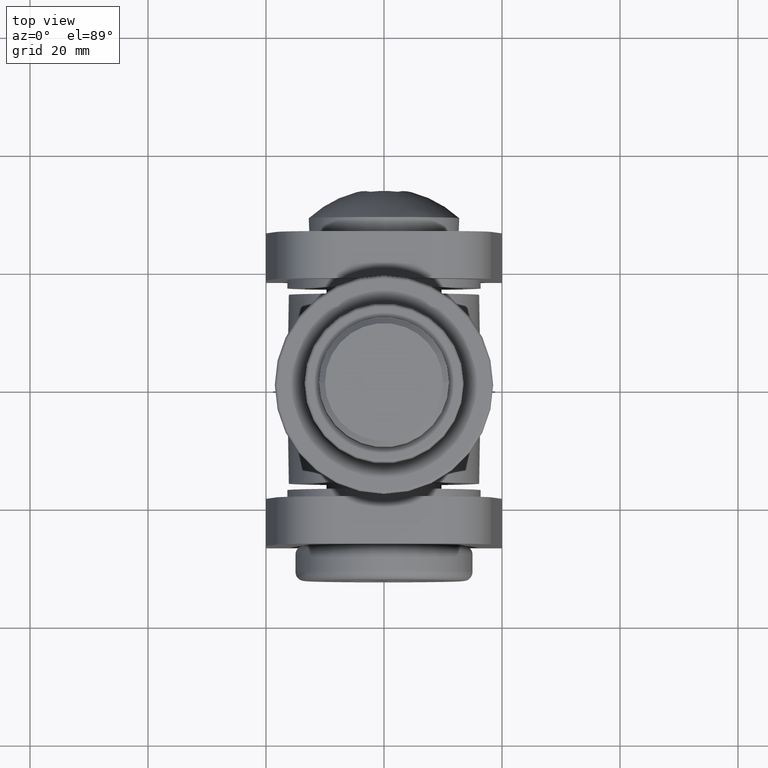
[diagram: clean part render]
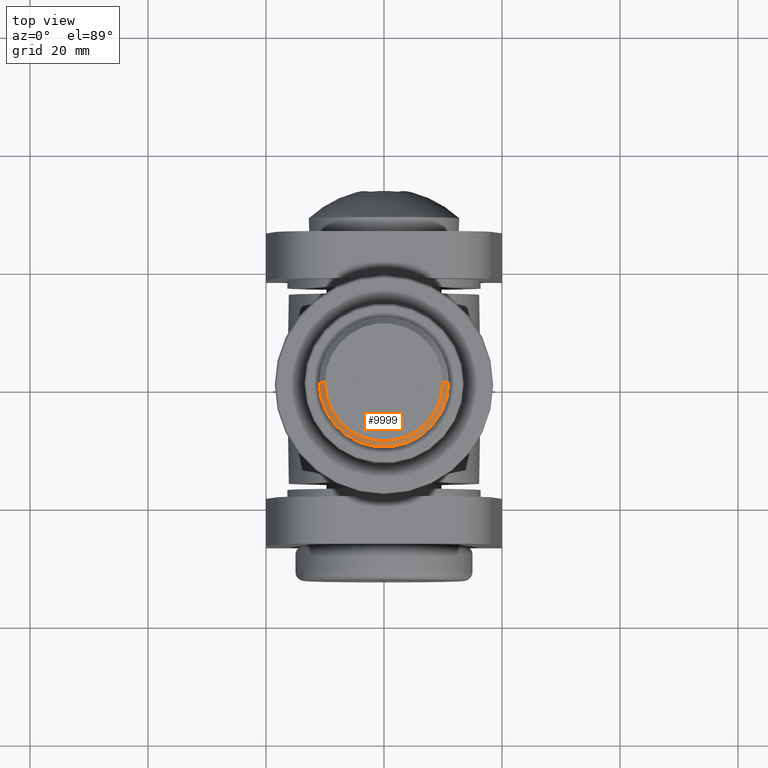
[diagram: same view with one face highlighted and labeled with its STEP entity id]
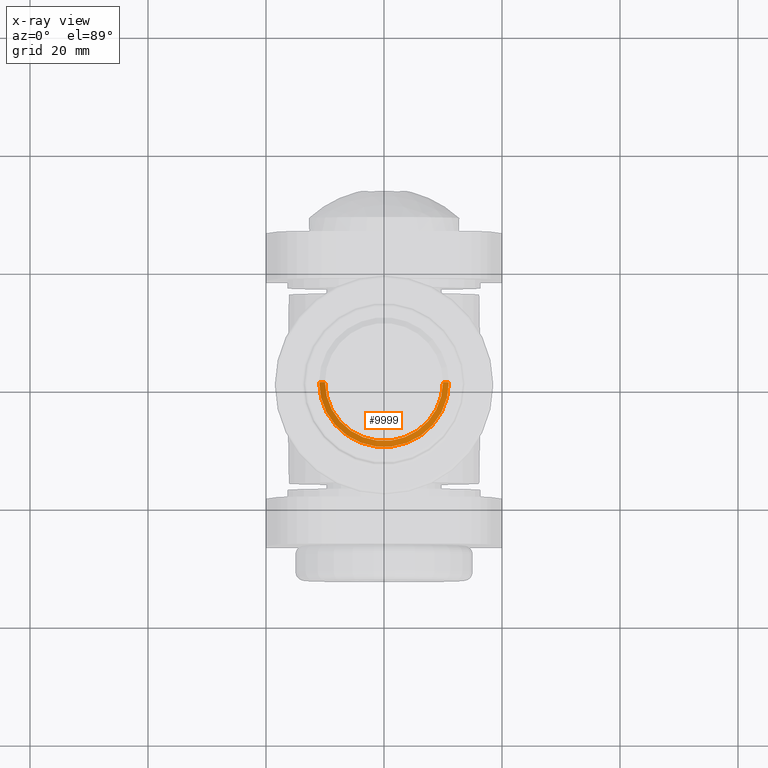
[diagram: x-ray of the same camera — body ghosted, the highlighted face saturated]
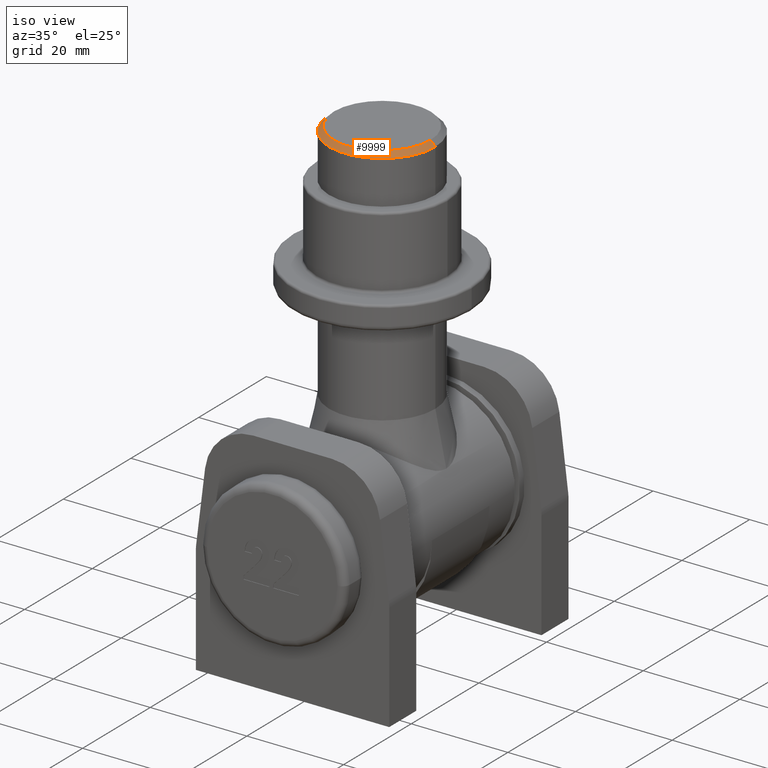
[diagram: same view with one face highlighted and labeled with its STEP entity id]
A machine part, top view. The second image highlights one B-rep face of the part: STEP entity #9999.
The next image is the same camera in x-ray: the body ghosted, the highlighted face saturated — about 0% of this face is hidden behind the body in this view.
A second angle (iso view) of the same face is appended — the face is thin or edge-on in the first view.
In plain terms, the highlighted conical surface has half-angle 45 deg.
Its self-contained STEP definition (entity closure, byte-faithful):
#82 = EDGE_CURVE ( 'NONE', #9168, #4459, #9275, .T. ) ;
#108 = CARTESIAN_POINT ( 'NONE',  ( 0.0000000000000000000, 0.0000000000000000000, 69.00000000000001400 ) ) ;
#285 = EDGE_CURVE ( 'NONE', #1518, #10816, #14942, .T. ) ;
#546 = DIRECTION ( 'NONE',  ( 0.0000000000000000000, 0.0000000000000000000, 1.000000000000000000 ) ) ;
#1126 = LINE ( 'NONE', #8295, #11838 ) ;
#1146 = CARTESIAN_POINT ( 'NONE',  ( 11.00000000000000000, 0.0000000000000000000, 69.00000000000001400 ) ) ;
#1518 = VERTEX_POINT ( 'NONE', #4628 ) ;
#1937 = CARTESIAN_POINT ( 'NONE',  ( -9.999999999999994700, 0.0000000000000000000, 70.00000000000000000 ) ) ;
#2930 = DIRECTION ( 'NONE',  ( 1.000000000000000000, 0.0000000000000000000, 0.0000000000000000000 ) ) ;
#3541 = CARTESIAN_POINT ( 'NONE',  ( 9.999999999999994700, 1.285879139104720400E-015, 70.00000000000000000 ) ) ;
#3727 = DIRECTION ( 'NONE',  ( 0.0000000000000000000, 0.0000000000000000000, -1.000000000000000000 ) ) ;
#4150 = EDGE_CURVE ( 'NONE', #1518, #4459, #13867, .T. ) ;
#4459 = VERTEX_POINT ( 'NONE', #12149 ) ;
#4628 = CARTESIAN_POINT ( 'NONE',  ( -9.999999999999994700, 0.0000000000000000000, 70.00000000000000000 ) ) ;
#4953 = ORIENTED_EDGE ( 'NONE', *, *, #4150, .T. ) ;
#5554 = AXIS2_PLACEMENT_3D ( 'NONE', #7918, #546, #2930 ) ;
#5962 = AXIS2_PLACEMENT_3D ( 'NONE', #108, #3727, #13406 ) ;
#6874 = DIRECTION ( 'NONE',  ( 0.7071067811865536800, 8.659560562355008000E-017, -0.7071067811865414700 ) ) ;
#7623 = FACE_OUTER_BOUND ( 'NONE', #12598, .T. ) ;
#7918 = CARTESIAN_POINT ( 'NONE',  ( 0.0000000000000000000, 0.0000000000000000000, 70.00000000000000000 ) ) ;
#8115 = DIRECTION ( 'NONE',  ( -0.7071067811865536800, 0.0000000000000000000, -0.7071067811865414700 ) ) ;
#8248 = EDGE_CURVE ( 'NONE', #10816, #9168, #1126, .T. ) ;
#8295 = CARTESIAN_POINT ( 'NONE',  ( 9.999999999999994700, 1.224646799147352700E-015, 70.00000000000000000 ) ) ;
#8366 = CONICAL_SURFACE ( 'NONE', #13019, 9.999999999999994700, 0.7853981633974570500 ) ;
#8951 = CARTESIAN_POINT ( 'NONE',  ( 0.0000000000000000000, 0.0000000000000000000, 70.00000000000000000 ) ) ;
#9168 = VERTEX_POINT ( 'NONE', #1146 ) ;
#9275 = CIRCLE ( 'NONE', #5962, 11.00000000000000000 ) ;
#9867 = ORIENTED_EDGE ( 'NONE', *, *, #285, .F. ) ;
#9999 = ADVANCED_FACE ( 'NONE', ( #7623 ), #8366, .T. ) ;
#10193 = DIRECTION ( 'NONE',  ( -1.000000000000000000, 0.0000000000000000000, 0.0000000000000000000 ) ) ;
#10816 = VERTEX_POINT ( 'NONE', #3541 ) ;
#11322 = ORIENTED_EDGE ( 'NONE', *, *, #82, .F. ) ;
#11838 = VECTOR ( 'NONE', #6874, 1000.000000000000000 ) ;
#12149 = CARTESIAN_POINT ( 'NONE',  ( -11.00000000000000000, 1.347111479062088400E-015, 69.00000000000001400 ) ) ;
#12540 = ORIENTED_EDGE ( 'NONE', *, *, #8248, .F. ) ;
#12598 = EDGE_LOOP ( 'NONE', ( #12540, #9867, #4953, #11322 ) ) ;
#12754 = DIRECTION ( 'NONE',  ( 0.0000000000000000000, 0.0000000000000000000, -1.000000000000000000 ) ) ;
#13019 = AXIS2_PLACEMENT_3D ( 'NONE', #8951, #12754, #10193 ) ;
#13406 = DIRECTION ( 'NONE',  ( 1.000000000000000000, 0.0000000000000000000, 0.0000000000000000000 ) ) ;
#13867 = LINE ( 'NONE', #1937, #14625 ) ;
#14625 = VECTOR ( 'NONE', #8115, 1000.000000000000000 ) ;
#14942 = CIRCLE ( 'NONE', #5554, 9.999999999999994700 ) ;